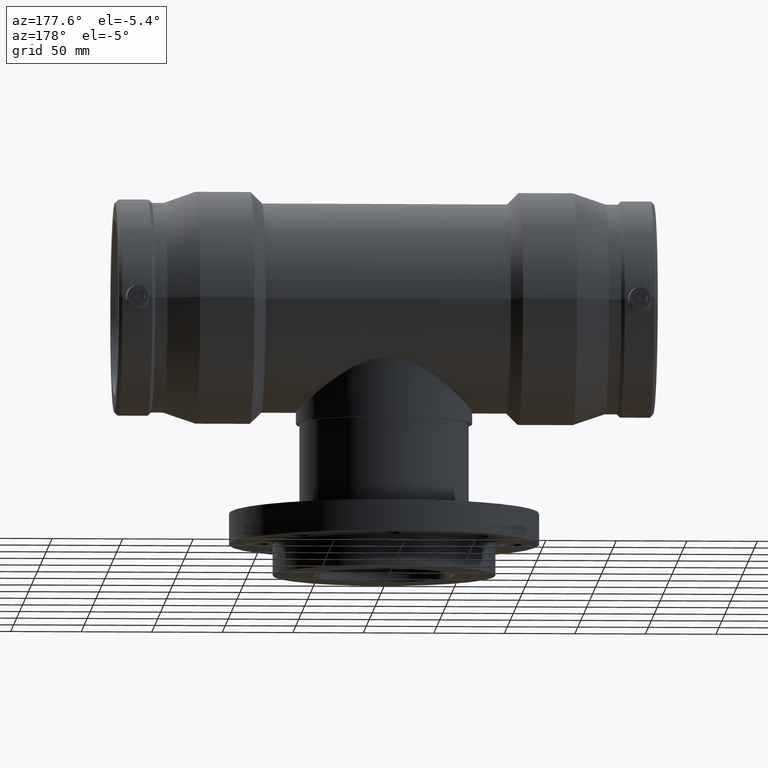
[diagram: clean part render]
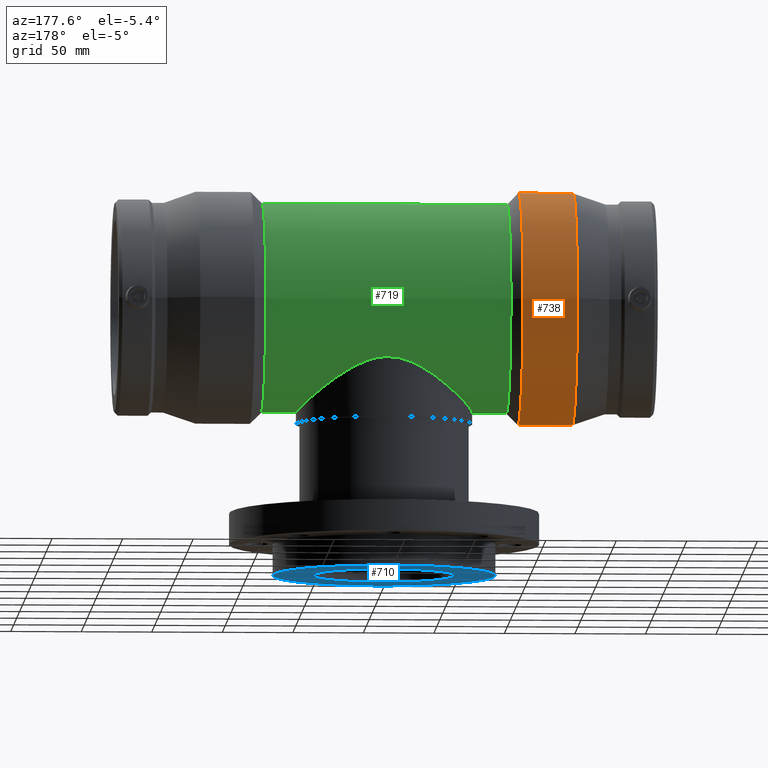
[diagram: same view with three faces highlighted in distinct colors, each labeled with its STEP entity id]
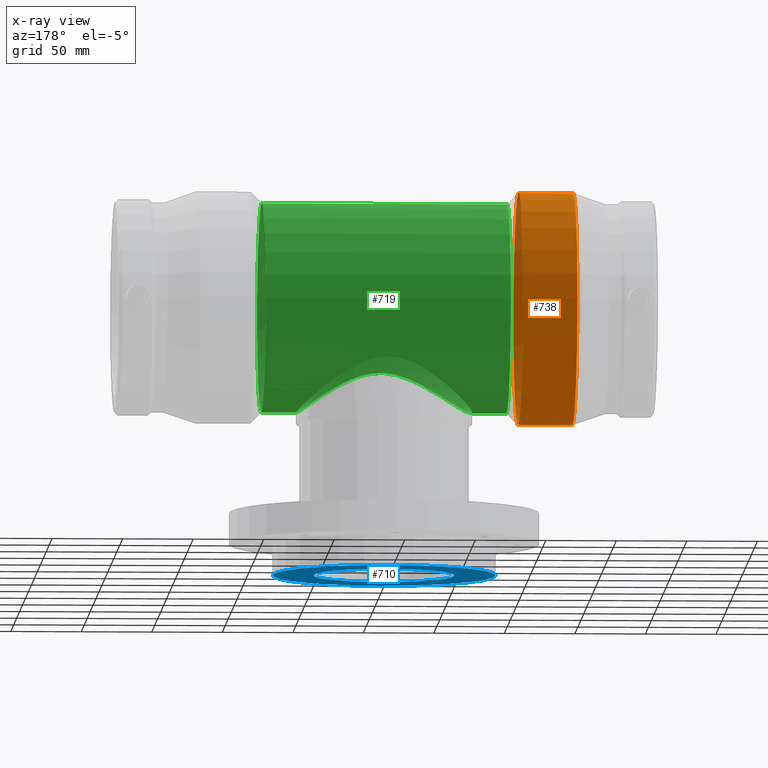
[diagram: x-ray of the same camera — body ghosted, the three highlighted faces saturated]
A machine part, auxiliary view with three faces highlighted in distinct colors.
The next image is the same camera in x-ray (body ghosted, the three faces saturated) — at least one of them is partly hidden behind the body in this view.
Their STEP definitions:

[orange] entity #738 — the highlighted cylindrical surface (bore or boss wall) has radius 82.5 mm, axis along (1, 0, 0).
#98=FACE_BOUND('',#369,.T.);
#165=CIRCLE('',#843,82.5);
#166=CIRCLE('',#845,82.5);
#206=CYLINDRICAL_SURFACE('',#844,82.5);
#254=FACE_OUTER_BOUND('',#368,.T.);
#368=EDGE_LOOP('',(#654));
#369=EDGE_LOOP('',(#655));
#468=VERTEX_POINT('',#1677);
#469=VERTEX_POINT('',#1680);
#538=EDGE_CURVE('',#468,#468,#165,.T.);
#539=EDGE_CURVE('',#469,#469,#166,.T.);
#654=ORIENTED_EDGE('',*,*,#538,.T.);
#655=ORIENTED_EDGE('',*,*,#539,.F.);
#738=ADVANCED_FACE('',(#254,#98),#206,.T.);
#843=AXIS2_PLACEMENT_3D('',#1678,#1051,#1052);
#844=AXIS2_PLACEMENT_3D('',#1679,#1053,#1054);
#845=AXIS2_PLACEMENT_3D('',#1681,#1055,#1056);
#1051=DIRECTION('center_axis',(1.,0.,0.));
#1052=DIRECTION('ref_axis',(0.,0.,-1.));
#1053=DIRECTION('center_axis',(1.,0.,0.));
#1054=DIRECTION('ref_axis',(0.,1.,0.));
#1055=DIRECTION('center_axis',(1.,0.,0.));
#1056=DIRECTION('ref_axis',(0.,0.,-1.));
#1677=CARTESIAN_POINT('',(-133.7,82.5,0.));
#1678=CARTESIAN_POINT('Origin',(-133.7,0.,0.));
#1679=CARTESIAN_POINT('Origin',(-114.4275,0.,0.));
#1680=CARTESIAN_POINT('',(-95.155,82.5,0.));
#1681=CARTESIAN_POINT('Origin',(-95.155,0.,0.));

[blue] entity #710 — the highlighted planar face has unit normal (-0, 0, -1).
#30=PLANE('',#789);
#54=FACE_BOUND('',#297,.T.);
#137=CIRCLE('',#786,50.);
#139=CIRCLE('',#790,79.);
#226=FACE_OUTER_BOUND('',#296,.T.);
#296=EDGE_LOOP('',(#582));
#297=EDGE_LOOP('',(#583));
#437=VERTEX_POINT('',#1455);
#440=VERTEX_POINT('',#1528);
#507=EDGE_CURVE('',#437,#437,#137,.T.);
#510=EDGE_CURVE('',#440,#440,#139,.T.);
#582=ORIENTED_EDGE('',*,*,#510,.T.);
#583=ORIENTED_EDGE('',*,*,#507,.F.);
#710=ADVANCED_FACE('',(#226,#54),#30,.T.);
#786=AXIS2_PLACEMENT_3D('',#1456,#937,#938);
#789=AXIS2_PLACEMENT_3D('',#1527,#943,#944);
#790=AXIS2_PLACEMENT_3D('',#1529,#945,#946);
#937=DIRECTION('center_axis',(-1.22464679914735E-16,0.,-1.));
#938=DIRECTION('ref_axis',(1.,0.,-1.22464679914735E-16));
#943=DIRECTION('center_axis',(-1.22464679914735E-16,0.,-1.));
#944=DIRECTION('ref_axis',(-1.,0.,0.));
#945=DIRECTION('center_axis',(-1.22464679914735E-16,0.,-1.));
#946=DIRECTION('ref_axis',(1.,0.,-1.22464679914735E-16));
#1455=CARTESIAN_POINT('',(-50.,0.,-190.));
#1456=CARTESIAN_POINT('Origin',(-2.32682891837997E-14,0.,-190.));
#1527=CARTESIAN_POINT('Origin',(-50.,0.,-190.));
#1528=CARTESIAN_POINT('',(-79.,0.,-190.));
#1529=CARTESIAN_POINT('Origin',(-2.32682891837997E-14,0.,-190.));

[green] entity #719 — the highlighted cylindrical surface (bore or boss wall) has radius 74.25 mm, axis along (1, 0, 0).
#79=FACE_BOUND('',#331,.T.);
#80=FACE_BOUND('',#332,.T.);
#147=CIRCLE('',#807,74.25);
#148=CIRCLE('',#808,74.25);
#199=CYLINDRICAL_SURFACE('',#806,74.25);
#235=FACE_OUTER_BOUND('',#330,.T.);
#330=EDGE_LOOP('',(#616));
#331=EDGE_LOOP('',(#617));
#332=EDGE_LOOP('',(#618));
#416=B_SPLINE_CURVE_WITH_KNOTS('',3,(#1461,#1462,#1463,#1464,#1465,#1466,
#1467,#1468,#1469,#1470,#1471,#1472,#1473,#1474,#1475,#1476,#1477,#1478,
#1479,#1480,#1481,#1482,#1483,#1484,#1485,#1486,#1487,#1488,#1489,#1490,
#1491,#1492,#1493,#1494,#1495,#1496,#1497,#1498,#1499,#1500,#1501,#1502,
#1503,#1504,#1505,#1506,#1507,#1508,#1509,#1510,#1511,#1512,#1513,#1514,
#1515,#1516,#1517,#1518,#1519,#1520,#1521,#1522,#1523,#1524,#1525,#1526),
 .UNSPECIFIED.,.T.,.F.,(4,2,2,2,2,2,2,2,2,2,2,2,2,2,2,2,2,2,2,2,2,2,2,2,
2,2,2,2,2,2,2,2,4),(0.,1.30743169333684,2.61486338667368,3.92229508001052,
5.22972677334736,6.48023438585292,7.73074199835848,8.98124961086404,10.2317572233696,
11.4822648358752,12.7327724483807,13.9832800608863,15.2337876733918,16.5412193667287,
17.8486510600655,19.1560827534024,20.4635144467392,21.770946140076,23.0783778334129,
24.3858095267497,25.6932412200866,26.9437488325921,28.1942564450977,29.4447640576032,
30.6952716701088,31.9457792826144,33.1962868951199,34.4467945076255,35.697302120131,
37.0047338134679,38.3121655068047,39.6195972001416,40.9270288934784),
 .UNSPECIFIED.);
#439=VERTEX_POINT('',#1460);
#448=VERTEX_POINT('',#1553);
#449=VERTEX_POINT('',#1555);
#509=EDGE_CURVE('',#439,#439,#416,.T.);
#518=EDGE_CURVE('',#448,#448,#147,.T.);
#519=EDGE_CURVE('',#449,#449,#148,.T.);
#616=ORIENTED_EDGE('',*,*,#518,.F.);
#617=ORIENTED_EDGE('',*,*,#519,.T.);
#618=ORIENTED_EDGE('',*,*,#509,.T.);
#719=ADVANCED_FACE('',(#235,#79,#80),#199,.T.);
#806=AXIS2_PLACEMENT_3D('',#1552,#977,#978);
#807=AXIS2_PLACEMENT_3D('',#1554,#979,#980);
#808=AXIS2_PLACEMENT_3D('',#1556,#981,#982);
#977=DIRECTION('center_axis',(1.,0.,0.));
#978=DIRECTION('ref_axis',(0.,1.,0.));
#979=DIRECTION('center_axis',(1.,0.,0.));
#980=DIRECTION('ref_axis',(0.,0.,-1.));
#981=DIRECTION('center_axis',(1.,0.,0.));
#982=DIRECTION('ref_axis',(0.,0.,-1.));
#1460=CARTESIAN_POINT('',(-4.9960036108132E-15,62.5,-40.0850657976259));
#1461=CARTESIAN_POINT('Ctrl Pts',(-4.9960036108132E-15,62.5,-40.0850657976259));
#1462=CARTESIAN_POINT('Ctrl Pts',(-4.35810564445614,62.5,-40.0850657976259));
#1463=CARTESIAN_POINT('Ctrl Pts',(-8.61141923070197,62.0450726383773,-40.8133125281188));
#1464=CARTESIAN_POINT('Ctrl Pts',(-16.8027069445983,60.3441515226816,-43.2885769230349));
#1465=CARTESIAN_POINT('Ctrl Pts',(-20.7448242866051,59.0974616377483,-45.0213830838224));
#1466=CARTESIAN_POINT('Ctrl Pts',(-28.2433468762901,55.9032300389323,-48.9312162090436));
#1467=CARTESIAN_POINT('Ctrl Pts',(-31.8012251154729,53.9527214558474,-51.1072065276312));
#1468=CARTESIAN_POINT('Ctrl Pts',(-38.4124655741652,49.4640936166533,-55.463016143902));
#1469=CARTESIAN_POINT('Ctrl Pts',(-41.4642942753732,46.9240533729452,-57.643183096619));
#1470=CARTESIAN_POINT('Ctrl Pts',(-46.8051975391096,41.5831501092089,-61.5992037000192));
#1471=CARTESIAN_POINT('Ctrl Pts',(-49.3126232784044,38.6061387825884,-63.534503012959));
#1472=CARTESIAN_POINT('Ctrl Pts',(-53.8213566728786,32.0223411628865,-67.0942373950831));
#1473=CARTESIAN_POINT('Ctrl Pts',(-55.8226637296755,28.4149580039061,-68.7175691966414));
#1474=CARTESIAN_POINT('Ctrl Pts',(-59.0980644120951,20.7605058308742,-71.4038915316662));
#1475=CARTESIAN_POINT('Ctrl Pts',(-60.3750450987947,16.704287002713,-72.4688998830878));
#1476=CARTESIAN_POINT('Ctrl Pts',(-62.0763953638244,8.40835381082281,-73.8923151684768));
#1477=CARTESIAN_POINT('Ctrl Pts',(-62.5,4.16835870835187,-74.25));
#1478=CARTESIAN_POINT('Ctrl Pts',(-62.5,-4.16835870835187,-74.25));
#1479=CARTESIAN_POINT('Ctrl Pts',(-62.0763953638244,-8.40835381082281,-73.8923151684768));
#1480=CARTESIAN_POINT('Ctrl Pts',(-60.3750450987947,-16.704287002713,-72.4688998830878));
#1481=CARTESIAN_POINT('Ctrl Pts',(-59.0980644120951,-20.7605058308742,-71.4038915316662));
#1482=CARTESIAN_POINT('Ctrl Pts',(-55.8226637296755,-28.4149580039061,-68.7175691966414));
#1483=CARTESIAN_POINT('Ctrl Pts',(-53.8213566728786,-32.0223411628865,-67.0942373950831));
#1484=CARTESIAN_POINT('Ctrl Pts',(-49.3126232784044,-38.6061387825884,-63.534503012959));
#1485=CARTESIAN_POINT('Ctrl Pts',(-46.8051975391096,-41.5831501092089,-61.5992037000192));
#1486=CARTESIAN_POINT('Ctrl Pts',(-41.4642942753732,-46.9240533729452,-57.643183096619));
#1487=CARTESIAN_POINT('Ctrl Pts',(-38.4124655741652,-49.4640936166534,-55.463016143902));
#1488=CARTESIAN_POINT('Ctrl Pts',(-31.8012251154729,-53.9527214558474,-51.1072065276312));
#1489=CARTESIAN_POINT('Ctrl Pts',(-28.2433468762901,-55.9032300389323,-48.9312162090436));
#1490=CARTESIAN_POINT('Ctrl Pts',(-20.7448242866051,-59.0974616377483,-45.0213830838224));
#1491=CARTESIAN_POINT('Ctrl Pts',(-16.8027069445983,-60.3441515226816,-43.2885769230349));
#1492=CARTESIAN_POINT('Ctrl Pts',(-8.61141923070196,-62.0450726383773,-40.8133125281188));
#1493=CARTESIAN_POINT('Ctrl Pts',(-4.35810564445613,-62.5,-40.0850657976259));
#1494=CARTESIAN_POINT('Ctrl Pts',(4.35810564445612,-62.5,-40.0850657976259));
#1495=CARTESIAN_POINT('Ctrl Pts',(8.61141923070196,-62.0450726383773,-40.8133125281188));
#1496=CARTESIAN_POINT('Ctrl Pts',(16.8027069445983,-60.3441515226816,-43.2885769230349));
#1497=CARTESIAN_POINT('Ctrl Pts',(20.7448242866051,-59.0974616377483,-45.0213830838224));
#1498=CARTESIAN_POINT('Ctrl Pts',(28.2433468762901,-55.9032300389323,-48.9312162090436));
#1499=CARTESIAN_POINT('Ctrl Pts',(31.8012251154729,-53.9527214558474,-51.1072065276312));
#1500=CARTESIAN_POINT('Ctrl Pts',(38.4124655741652,-49.4640936166534,-55.463016143902));
#1501=CARTESIAN_POINT('Ctrl Pts',(41.4642942753732,-46.9240533729452,-57.643183096619));
#1502=CARTESIAN_POINT('Ctrl Pts',(46.8051975391095,-41.5831501092089,-61.5992037000192));
#1503=CARTESIAN_POINT('Ctrl Pts',(49.3126232784044,-38.6061387825884,-63.534503012959));
#1504=CARTESIAN_POINT('Ctrl Pts',(53.8213566728786,-32.0223411628865,-67.0942373950831));
#1505=CARTESIAN_POINT('Ctrl Pts',(55.8226637296755,-28.4149580039061,-68.7175691966414));
#1506=CARTESIAN_POINT('Ctrl Pts',(59.0980644120951,-20.7605058308742,-71.4038915316662));
#1507=CARTESIAN_POINT('Ctrl Pts',(60.3750450987947,-16.704287002713,-72.4688998830878));
#1508=CARTESIAN_POINT('Ctrl Pts',(62.0763953638244,-8.4083538108228,-73.8923151684768));
#1509=CARTESIAN_POINT('Ctrl Pts',(62.5,-4.16835870835187,-74.25));
#1510=CARTESIAN_POINT('Ctrl Pts',(62.5,4.16835870835186,-74.25));
#1511=CARTESIAN_POINT('Ctrl Pts',(62.0763953638244,8.4083538108228,-73.8923151684768));
#1512=CARTESIAN_POINT('Ctrl Pts',(60.3750450987947,16.7042870027129,-72.4688998830878));
#1513=CARTESIAN_POINT('Ctrl Pts',(59.0980644120951,20.7605058308742,-71.4038915316662));
#1514=CARTESIAN_POINT('Ctrl Pts',(55.8226637296755,28.414958003906,-68.7175691966415));
#1515=CARTESIAN_POINT('Ctrl Pts',(53.8213566728786,32.0223411628864,-67.0942373950831));
#1516=CARTESIAN_POINT('Ctrl Pts',(49.3126232784044,38.6061387825884,-63.534503012959));
#1517=CARTESIAN_POINT('Ctrl Pts',(46.8051975391096,41.5831501092089,-61.5992037000192));
#1518=CARTESIAN_POINT('Ctrl Pts',(41.4642942753732,46.9240533729452,-57.643183096619));
#1519=CARTESIAN_POINT('Ctrl Pts',(38.4124655741651,49.4640936166534,-55.463016143902));
#1520=CARTESIAN_POINT('Ctrl Pts',(31.8012251154729,53.9527214558474,-51.1072065276312));
#1521=CARTESIAN_POINT('Ctrl Pts',(28.2433468762901,55.9032300389323,-48.9312162090436));
#1522=CARTESIAN_POINT('Ctrl Pts',(20.744824286605,59.0974616377483,-45.0213830838224));
#1523=CARTESIAN_POINT('Ctrl Pts',(16.8027069445982,60.3441515226816,-43.2885769230349));
#1524=CARTESIAN_POINT('Ctrl Pts',(8.61141923070195,62.0450726383773,-40.8133125281189));
#1525=CARTESIAN_POINT('Ctrl Pts',(4.35810564445612,62.5,-40.0850657976259));
#1526=CARTESIAN_POINT('Ctrl Pts',(-4.9960036108132E-15,62.5,-40.0850657976259));
#1552=CARTESIAN_POINT('Origin',(0.,0.,0.));
#1553=CARTESIAN_POINT('',(86.905,74.25,0.));
#1554=CARTESIAN_POINT('Origin',(86.905,0.,0.));
#1555=CARTESIAN_POINT('',(-86.905,74.25,0.));
#1556=CARTESIAN_POINT('Origin',(-86.905,0.,0.));